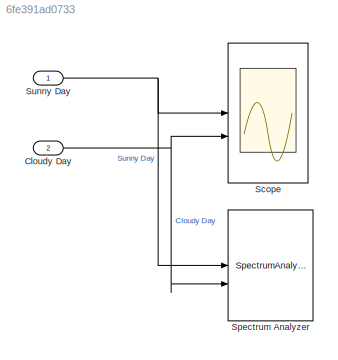
MODEL slx_6fe391ad0733
KIND model
CONFIG AbsTol = auto
CONFIG EnableMultiTasking = off
CONFIG FixedStep = auto
CONFIG MaxStep = auto
CONFIG MinStep = auto
CONFIG RelTol = 1e-3
CONFIG SampleTimeConstraint = Unconstrained
CONFIG SolverName = VariableStepAuto
CONFIG StartTime = 0.0
CONFIG StopTime = 1
BLOCK [Inport] Cloudy Day
  Port = 2
  SampleTime = 1/Fs
BLOCK [Scope] Scope 
  Floating = off
  NumInputPorts = 2
  ScopeSpecificationString = Simulink.scopes.TimeScopeBlockCfg('CurrentConfiguration', extmgr.ConfigurationSet(extmgr.Configuration('Core','General UI',true,'FigureColor',[0 0 0]),extmgr.Configuration('Core','Source UI',true),extmgr.Configuration('Sources','WiredSimulink',true),extmgr.Configuration('Visuals','Time Domain',true,'PlotType','Line','SerializedDisplays',{struct('MinYLimReal','-60.92237','MaxYLimReal','545.70393','...<+1670ch>
BLOCK [SpectrumAnalyzer] Spectrum Analyzer 
  FFTLength = 256
  FrequencyResolutionMethod = Window length
  GraphicalSettings = {"GraphicalSettings":{"Style":{"BackgroundColor":[0,0,0],"AxesColor":[0,0,0],"LabelsColor":[1,1,1],"PreserveColors":false,"Visible":[true,true],"LineStyle":["-","-"],"LineWidth":[4,4],"BarWidth":[0.9,0.9],"LineColor":[[1,1,0.06666666666666667],[0,0,1]],"LineFaceAlpha":[1,1],"LineEdgeAlpha":[1,1],"Marker":["none","none"],"FontSize":11.5},"Cursors":{"Enabled":false,"XLocation":[2,8],"YLocation":[2,8...<+856ch>
  Method = Welch
  NumInputPorts = 2
  PlotAsTwoSidedSpectrum = off
  ScopeFrameLocation = window
  ShowLegend = on
  SidelobeAttenuation = 8
  WasSavedAsWebScope = on
  WindowInvariantSamplesPerUpdate = on
  WindowLength = 96
  WindowPosition = [654.000000,207.000000,1303.000000,927.000000,]
  YLimits = [-15.910565906918727,113.39673540558405]
BLOCK [Inport] Sunny Day
  SampleTime = 1/Fs
NET Cloudy Day:1 -> Scope :2, Spectrum Analyzer :2
NET Sunny Day:1 -> Scope :1, Spectrum Analyzer :1
note: NET lines group one-source signal fan-out (src -> all destinations, sorted); 1:1 wires keep LINE
